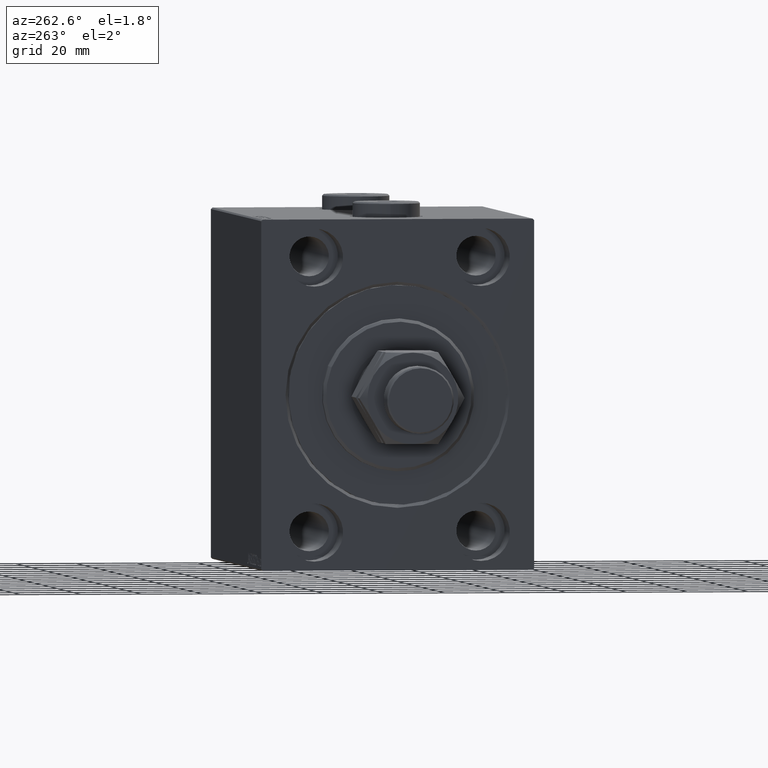
[diagram: clean part render]
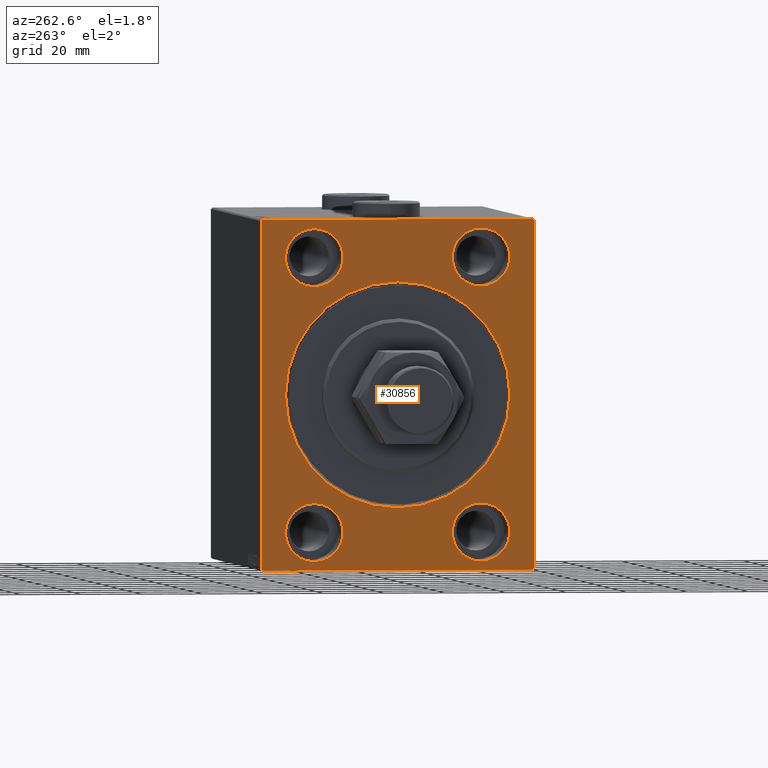
[diagram: same view with one face highlighted and labeled with its STEP entity id]
A machine part, auxiliary view. The second image highlights one B-rep face of the part: STEP entity #30856.
In plain terms, the highlighted planar face has unit normal (1, 0, 0).
Its self-contained STEP definition (entity closure, byte-faithful):
#94 = CARTESIAN_POINT ( 'NONE',  ( 0.000000000000000000, 27.49999999999998934, -44.99999999999998579 ) ) ;
#196 = VECTOR ( 'NONE', #37386, 1000.000000000000000 ) ;
#338 = DIRECTION ( 'NONE',  ( 0.000000000000000000, 0.000000000000000000, 1.000000000000000000 ) ) ;
#1223 = ORIENTED_EDGE ( 'NONE', *, *, #39398, .F. ) ;
#1995 = ORIENTED_EDGE ( 'NONE', *, *, #38458, .F. ) ;
#2137 = LINE ( 'NONE', #16646, #35731 ) ;
#2301 = VERTEX_POINT ( 'NONE', #13695 ) ;
#2407 = CARTESIAN_POINT ( 'NONE',  ( 0.000000000000000000, -45.00000000000000000, 56.99999999999999289 ) ) ;
#2472 = EDGE_LOOP ( 'NONE', ( #30564, #17053 ) ) ;
#2498 = AXIS2_PLACEMENT_3D ( 'NONE', #25361, #10385, #25121 ) ;
#2655 = LINE ( 'NONE', #9787, #7938 ) ;
#3127 = DIRECTION ( 'NONE',  ( 0.000000000000000000, -1.000000000000000000, -1.541976423090495387E-16 ) ) ;
#3184 = DIRECTION ( 'NONE',  ( 0.000000000000000000, 0.000000000000000000, 1.000000000000000000 ) ) ;
#3248 = CARTESIAN_POINT ( 'NONE',  ( 0.000000000000000000, 0.000000000000000000, 37.00000000000000711 ) ) ;
#3249 = CIRCLE ( 'NONE', #29811, 9.500000000000001776 ) ;
#3597 = LINE ( 'NONE', #46148, #15627 ) ;
#3724 = VERTEX_POINT ( 'NONE', #5944 ) ;
#4201 = CARTESIAN_POINT ( 'NONE',  ( 0.000000000000000000, -45.00000000000000000, 57.49999999999999289 ) ) ;
#4282 = CIRCLE ( 'NONE', #38450, 37.00000000000000711 ) ;
#4391 = AXIS2_PLACEMENT_3D ( 'NONE', #29748, #36657, #25952 ) ;
#4440 = DIRECTION ( 'NONE',  ( 0.000000000000000000, 0.000000000000000000, -1.000000000000000000 ) ) ;
#5185 = DIRECTION ( 'NONE',  ( 1.000000000000000000, 0.000000000000000000, 0.000000000000000000 ) ) ;
#5280 = VERTEX_POINT ( 'NONE', #7851 ) ;
#5944 = CARTESIAN_POINT ( 'NONE',  ( 0.000000000000000000, 27.49999999999998934, -54.49999999999998579 ) ) ;
#6144 = CARTESIAN_POINT ( 'NONE',  ( 0.000000000000000000, 0.000000000000000000, 0.000000000000000000 ) ) ;
#6150 = VERTEX_POINT ( 'NONE', #25691 ) ;
#6252 = EDGE_CURVE ( 'NONE', #2301, #6150, #30655, .T. ) ;
#7239 = VECTOR ( 'NONE', #30464, 1000.000000000000000 ) ;
#7346 = DIRECTION ( 'NONE',  ( -1.000000000000000000, 0.000000000000000000, 0.000000000000000000 ) ) ;
#7822 = EDGE_CURVE ( 'NONE', #3724, #11781, #13301, .T. ) ;
#7851 = CARTESIAN_POINT ( 'NONE',  ( 0.000000000000000000, -45.00000000000000000, -57.00000000000003553 ) ) ;
#7938 = VECTOR ( 'NONE', #3127, 1000.000000000000000 ) ;
#8322 = AXIS2_PLACEMENT_3D ( 'NONE', #46795, #7346, #28734 ) ;
#8393 = CARTESIAN_POINT ( 'NONE',  ( 0.000000000000000000, 45.00000000000001421, -57.50000000000000711 ) ) ;
#8691 = DIRECTION ( 'NONE',  ( -0.000000000000000000, 0.7071067811865474617, 0.7071067811865474617 ) ) ;
#8944 = ORIENTED_EDGE ( 'NONE', *, *, #32970, .T. ) ;
#9016 = DIRECTION ( 'NONE',  ( 1.000000000000000000, 0.000000000000000000, 0.000000000000000000 ) ) ;
#9229 = VERTEX_POINT ( 'NONE', #15264 ) ;
#9507 = VERTEX_POINT ( 'NONE', #33750 ) ;
#9787 = CARTESIAN_POINT ( 'NONE',  ( 0.000000000000000000, 45.00000000000000000, 57.50000000000000711 ) ) ;
#10043 = EDGE_CURVE ( 'NONE', #14979, #35600, #26516, .T. ) ;
#10385 = DIRECTION ( 'NONE',  ( -1.000000000000000000, 0.000000000000000000, 0.000000000000000000 ) ) ;
#10584 = AXIS2_PLACEMENT_3D ( 'NONE', #31300, #5185, #34424 ) ;
#10822 = CARTESIAN_POINT ( 'NONE',  ( 0.000000000000000000, -27.50000000000000000, -35.49999999999998579 ) ) ;
#11744 = AXIS2_PLACEMENT_3D ( 'NONE', #31184, #12430, #45697 ) ;
#11781 = VERTEX_POINT ( 'NONE', #13076 ) ;
#12301 = EDGE_CURVE ( 'NONE', #25738, #9229, #4282, .T. ) ;
#12328 = EDGE_LOOP ( 'NONE', ( #27196, #29989, #42337, #40135, #45870, #46792, #27592, #8944 ) ) ;
#12430 = DIRECTION ( 'NONE',  ( -1.000000000000000000, 0.000000000000000000, 0.000000000000000000 ) ) ;
#13039 = FACE_BOUND ( 'NONE', #23574, .T. ) ;
#13076 = CARTESIAN_POINT ( 'NONE',  ( 0.000000000000000000, 27.49999999999998934, -35.49999999999998579 ) ) ;
#13117 = CIRCLE ( 'NONE', #32869, 9.500000000000001776 ) ;
#13301 = CIRCLE ( 'NONE', #42891, 9.500000000000001776 ) ;
#13583 = EDGE_LOOP ( 'NONE', ( #27829, #1223 ) ) ;
#13695 = CARTESIAN_POINT ( 'NONE',  ( 0.000000000000000000, -44.50000000000002842, -57.50000000000000711 ) ) ;
#14035 = EDGE_CURVE ( 'NONE', #39402, #21897, #27136, .T. ) ;
#14653 = CARTESIAN_POINT ( 'NONE',  ( 0.000000000000000000, 27.49999999999998934, -44.99999999999998579 ) ) ;
#14838 = CARTESIAN_POINT ( 'NONE',  ( 0.000000000000000000, 44.50000000000000000, 57.50000000000000711 ) ) ;
#14979 = VERTEX_POINT ( 'NONE', #2407 ) ;
#15264 = CARTESIAN_POINT ( 'NONE',  ( 0.000000000000000000, 4.531193156845207581E-15, -37.00000000000000711 ) ) ;
#15434 = EDGE_CURVE ( 'NONE', #9507, #6150, #3597, .T. ) ;
#15627 = VECTOR ( 'NONE', #45921, 1000.000000000000000 ) ;
#16078 = DIRECTION ( 'NONE',  ( 1.000000000000000000, 0.000000000000000000, 0.000000000000000000 ) ) ;
#16150 = FACE_BOUND ( 'NONE', #13583, .T. ) ;
#16384 = PLANE ( 'NONE',  #45543 ) ;
#16646 = CARTESIAN_POINT ( 'NONE',  ( 0.000000000000000000, -44.50000000000002842, -57.50000000000000711 ) ) ;
#16853 = FACE_BOUND ( 'NONE', #25571, .T. ) ;
#17027 = CIRCLE ( 'NONE', #11744, 9.500000000000001776 ) ;
#17053 = ORIENTED_EDGE ( 'NONE', *, *, #46389, .F. ) ;
#18174 = DIRECTION ( 'NONE',  ( -1.000000000000000000, 0.000000000000000000, 0.000000000000000000 ) ) ;
#18203 = CIRCLE ( 'NONE', #8322, 9.500000000000001776 ) ;
#18303 = DIRECTION ( 'NONE',  ( -1.000000000000000000, 0.000000000000000000, 0.000000000000000000 ) ) ;
#18845 = AXIS2_PLACEMENT_3D ( 'NONE', #39676, #18303, #24949 ) ;
#19021 = CARTESIAN_POINT ( 'NONE',  ( 0.000000000000000000, 45.00000000000000000, 57.00000000000000711 ) ) ;
#19421 = LINE ( 'NONE', #4201, #46142 ) ;
#19422 = CARTESIAN_POINT ( 'NONE',  ( 0.000000000000000000, 0.000000000000000000, 0.000000000000000000 ) ) ;
#19753 = CARTESIAN_POINT ( 'NONE',  ( 0.000000000000000000, -45.00000000000000000, -57.50000000000000711 ) ) ;
#20428 = FACE_OUTER_BOUND ( 'NONE', #12328, .T. ) ;
#21001 = EDGE_CURVE ( 'NONE', #14979, #5280, #19421, .T. ) ;
#21592 = EDGE_CURVE ( 'NONE', #35242, #32024, #39287, .T. ) ;
#21897 = VERTEX_POINT ( 'NONE', #19021 ) ;
#22005 = CIRCLE ( 'NONE', #10584, 37.00000000000000711 ) ;
#22091 = EDGE_LOOP ( 'NONE', ( #24271, #32090 ) ) ;
#22260 = CARTESIAN_POINT ( 'NONE',  ( 0.000000000000000000, -45.00000000000000000, 56.99999999999999289 ) ) ;
#22391 = ORIENTED_EDGE ( 'NONE', *, *, #7822, .F. ) ;
#22981 = DIRECTION ( 'NONE',  ( 0.000000000000000000, 0.000000000000000000, -1.000000000000000000 ) ) ;
#23074 = VERTEX_POINT ( 'NONE', #28236 ) ;
#23522 = DIRECTION ( 'NONE',  ( 0.000000000000000000, 0.000000000000000000, -1.000000000000000000 ) ) ;
#23574 = EDGE_LOOP ( 'NONE', ( #1995, #22391 ) ) ;
#24271 = ORIENTED_EDGE ( 'NONE', *, *, #42293, .F. ) ;
#24949 = DIRECTION ( 'NONE',  ( 0.000000000000000000, 0.000000000000000000, 1.000000000000000000 ) ) ;
#25121 = DIRECTION ( 'NONE',  ( 0.000000000000000000, 0.000000000000000000, 1.000000000000000000 ) ) ;
#25361 = CARTESIAN_POINT ( 'NONE',  ( 0.000000000000000000, -27.50000000000000000, -44.99999999999998579 ) ) ;
#25571 = EDGE_LOOP ( 'NONE', ( #36308, #42892 ) ) ;
#25583 = EDGE_CURVE ( 'NONE', #46103, #27234, #18203, .T. ) ;
#25691 = CARTESIAN_POINT ( 'NONE',  ( 0.000000000000000000, 44.50000000000001421, -57.50000000000000711 ) ) ;
#25720 = EDGE_CURVE ( 'NONE', #9229, #25738, #22005, .T. ) ;
#25738 = VERTEX_POINT ( 'NONE', #3248 ) ;
#25952 = DIRECTION ( 'NONE',  ( 0.000000000000000000, 0.000000000000000000, 1.000000000000000000 ) ) ;
#26167 = VECTOR ( 'NONE', #27326, 1000.000000000000000 ) ;
#26516 = LINE ( 'NONE', #22260, #37642 ) ;
#27136 = LINE ( 'NONE', #34518, #7239 ) ;
#27196 = ORIENTED_EDGE ( 'NONE', *, *, #21001, .F. ) ;
#27234 = VERTEX_POINT ( 'NONE', #32226 ) ;
#27326 = DIRECTION ( 'NONE',  ( 0.000000000000000000, 1.000000000000000000, 0.000000000000000000 ) ) ;
#27535 = CIRCLE ( 'NONE', #2498, 9.500000000000001776 ) ;
#27592 = ORIENTED_EDGE ( 'NONE', *, *, #6252, .F. ) ;
#27829 = ORIENTED_EDGE ( 'NONE', *, *, #39037, .F. ) ;
#28236 = CARTESIAN_POINT ( 'NONE',  ( 0.000000000000000000, -27.50000000000000000, -54.49999999999998579 ) ) ;
#28734 = DIRECTION ( 'NONE',  ( 0.000000000000000000, 0.000000000000000000, 1.000000000000000000 ) ) ;
#29137 = DIRECTION ( 'NONE',  ( -1.000000000000000000, 0.000000000000000000, 0.000000000000000000 ) ) ;
#29324 = DIRECTION ( 'NONE',  ( -1.000000000000000000, 0.000000000000000000, 0.000000000000000000 ) ) ;
#29748 = CARTESIAN_POINT ( 'NONE',  ( 0.000000000000000000, -27.49999999999998934, 45.00000000000000711 ) ) ;
#29811 = AXIS2_PLACEMENT_3D ( 'NONE', #94, #18174, #3184 ) ;
#29989 = ORIENTED_EDGE ( 'NONE', *, *, #10043, .T. ) ;
#30464 = DIRECTION ( 'NONE',  ( -0.000000000000000000, 0.7071067811865671127, -0.7071067811865279218 ) ) ;
#30564 = ORIENTED_EDGE ( 'NONE', *, *, #25583, .F. ) ;
#30655 = LINE ( 'NONE', #19753, #26167 ) ;
#30856 = ADVANCED_FACE ( 'NONE', ( #16853, #13039, #37776, #34454, #16150, #20428 ), #16384, .F. ) ;
#31184 = CARTESIAN_POINT ( 'NONE',  ( 0.000000000000000000, -27.49999999999998934, 45.00000000000000711 ) ) ;
#31300 = CARTESIAN_POINT ( 'NONE',  ( 0.000000000000000000, 0.000000000000000000, 0.000000000000000000 ) ) ;
#32024 = VERTEX_POINT ( 'NONE', #45339 ) ;
#32090 = ORIENTED_EDGE ( 'NONE', *, *, #21592, .F. ) ;
#32226 = CARTESIAN_POINT ( 'NONE',  ( 0.000000000000000000, 27.50000000000001066, 35.50000000000000711 ) ) ;
#32610 = CARTESIAN_POINT ( 'NONE',  ( 0.000000000000000000, 27.50000000000001066, 54.50000000000000711 ) ) ;
#32869 = AXIS2_PLACEMENT_3D ( 'NONE', #32901, #29324, #338 ) ;
#32901 = CARTESIAN_POINT ( 'NONE',  ( 0.000000000000000000, -27.50000000000000000, -44.99999999999998579 ) ) ;
#32970 = EDGE_CURVE ( 'NONE', #2301, #5280, #2137, .T. ) ;
#33750 = CARTESIAN_POINT ( 'NONE',  ( 0.000000000000000000, 45.00000000000001421, -57.00000000000000711 ) ) ;
#34424 = DIRECTION ( 'NONE',  ( 0.000000000000000000, 0.000000000000000000, -1.000000000000000000 ) ) ;
#34454 = FACE_BOUND ( 'NONE', #2472, .T. ) ;
#34518 = CARTESIAN_POINT ( 'NONE',  ( 0.000000000000000000, 44.50000000000000000, 57.50000000000000711 ) ) ;
#35242 = VERTEX_POINT ( 'NONE', #39820 ) ;
#35513 = CIRCLE ( 'NONE', #18845, 9.500000000000001776 ) ;
#35600 = VERTEX_POINT ( 'NONE', #42859 ) ;
#35731 = VECTOR ( 'NONE', #45642, 1000.000000000000114 ) ;
#36308 = ORIENTED_EDGE ( 'NONE', *, *, #12301, .T. ) ;
#36422 = VERTEX_POINT ( 'NONE', #10822 ) ;
#36657 = DIRECTION ( 'NONE',  ( -1.000000000000000000, 0.000000000000000000, 0.000000000000000000 ) ) ;
#37371 = EDGE_CURVE ( 'NONE', #9507, #21897, #44991, .T. ) ;
#37386 = DIRECTION ( 'NONE',  ( 0.000000000000000000, -1.206764157201257045E-16, 1.000000000000000000 ) ) ;
#37642 = VECTOR ( 'NONE', #8691, 1000.000000000000114 ) ;
#37776 = FACE_BOUND ( 'NONE', #22091, .T. ) ;
#38450 = AXIS2_PLACEMENT_3D ( 'NONE', #19422, #16078, #22981 ) ;
#38458 = EDGE_CURVE ( 'NONE', #11781, #3724, #3249, .T. ) ;
#39037 = EDGE_CURVE ( 'NONE', #36422, #23074, #27535, .T. ) ;
#39287 = CIRCLE ( 'NONE', #4391, 9.500000000000001776 ) ;
#39398 = EDGE_CURVE ( 'NONE', #23074, #36422, #13117, .T. ) ;
#39402 = VERTEX_POINT ( 'NONE', #14838 ) ;
#39676 = CARTESIAN_POINT ( 'NONE',  ( 0.000000000000000000, 27.50000000000001066, 45.00000000000000711 ) ) ;
#39820 = CARTESIAN_POINT ( 'NONE',  ( 0.000000000000000000, -27.49999999999998934, 35.50000000000000711 ) ) ;
#40135 = ORIENTED_EDGE ( 'NONE', *, *, #14035, .T. ) ;
#42293 = EDGE_CURVE ( 'NONE', #32024, #35242, #17027, .T. ) ;
#42337 = ORIENTED_EDGE ( 'NONE', *, *, #42354, .F. ) ;
#42354 = EDGE_CURVE ( 'NONE', #39402, #35600, #2655, .T. ) ;
#42859 = CARTESIAN_POINT ( 'NONE',  ( 0.000000000000000000, -44.49999999999997158, 57.49999999999999289 ) ) ;
#42891 = AXIS2_PLACEMENT_3D ( 'NONE', #14653, #29137, #43884 ) ;
#42892 = ORIENTED_EDGE ( 'NONE', *, *, #25720, .T. ) ;
#43884 = DIRECTION ( 'NONE',  ( 0.000000000000000000, 0.000000000000000000, 1.000000000000000000 ) ) ;
#44991 = LINE ( 'NONE', #8393, #196 ) ;
#45339 = CARTESIAN_POINT ( 'NONE',  ( 0.000000000000000000, -27.49999999999998934, 54.50000000000000711 ) ) ;
#45543 = AXIS2_PLACEMENT_3D ( 'NONE', #6144, #9016, #23522 ) ;
#45642 = DIRECTION ( 'NONE',  ( -0.000000000000000000, -0.7071067811865474617, 0.7071067811865474617 ) ) ;
#45697 = DIRECTION ( 'NONE',  ( 0.000000000000000000, 0.000000000000000000, 1.000000000000000000 ) ) ;
#45870 = ORIENTED_EDGE ( 'NONE', *, *, #37371, .F. ) ;
#45921 = DIRECTION ( 'NONE',  ( 0.000000000000000000, -0.7071067811865279218, -0.7071067811865671127 ) ) ;
#46103 = VERTEX_POINT ( 'NONE', #32610 ) ;
#46142 = VECTOR ( 'NONE', #4440, 1000.000000000000000 ) ;
#46148 = CARTESIAN_POINT ( 'NONE',  ( 0.000000000000000000, 45.00000000000001421, -57.00000000000000711 ) ) ;
#46389 = EDGE_CURVE ( 'NONE', #27234, #46103, #35513, .T. ) ;
#46792 = ORIENTED_EDGE ( 'NONE', *, *, #15434, .T. ) ;
#46795 = CARTESIAN_POINT ( 'NONE',  ( 0.000000000000000000, 27.50000000000001066, 45.00000000000000711 ) ) ;